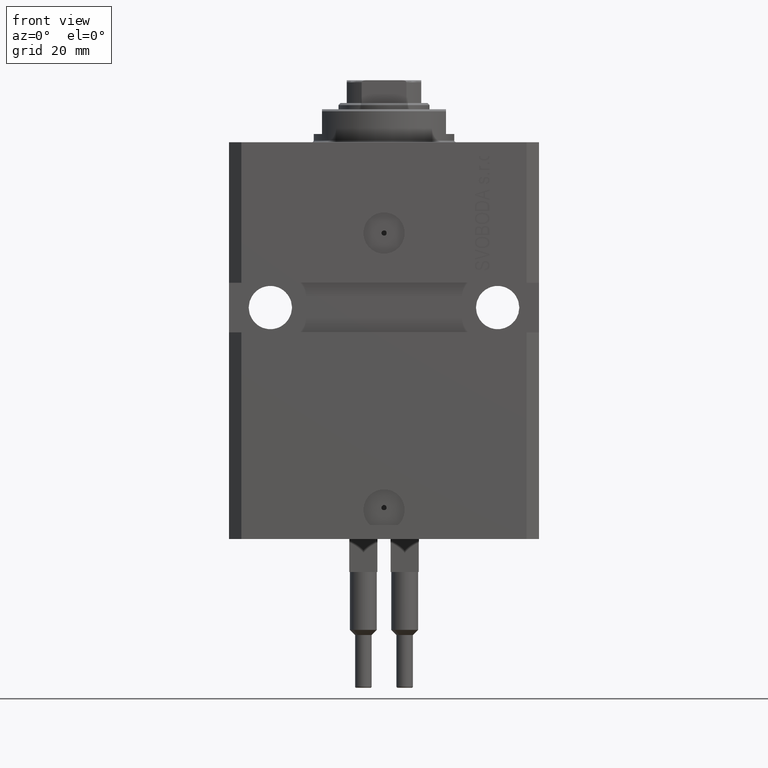
[diagram: clean part render]
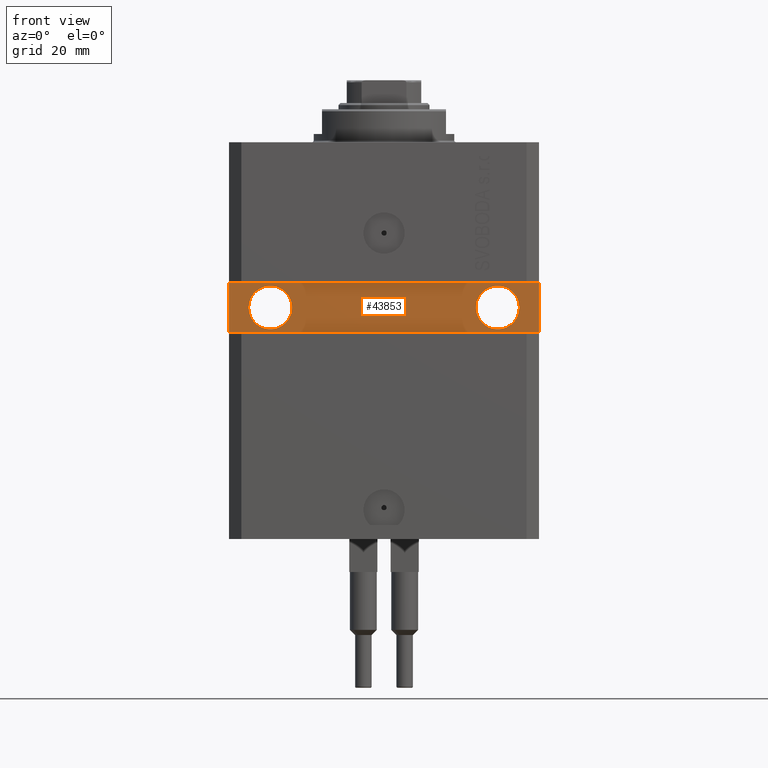
[diagram: same view with one face highlighted and labeled with its STEP entity id]
A machine part, front view. The second image highlights one B-rep face of the part: STEP entity #43853.
In plain terms, the highlighted planar face has unit normal (0, -1, 0).
Its self-contained STEP definition (entity closure, byte-faithful):
#1605 = DIRECTION ( 'NONE',  ( 1.000000000000000000, 9.251858538542972814E-17, 0.000000000000000000 ) ) ;
#1703 = DIRECTION ( 'NONE',  ( 1.101411730780568590E-16, -1.000000000000000000, 0.000000000000000000 ) ) ;
#1840 = CARTESIAN_POINT ( 'NONE',  ( 2.191435984341280931E-15, -24.49999999999999645, 0.000000000000000000 ) ) ;
#1997 = VERTEX_POINT ( 'NONE', #41491 ) ;
#2594 = DIRECTION ( 'NONE',  ( 1.000000000000000000, 0.000000000000000000, 0.000000000000000000 ) ) ;
#2644 = VERTEX_POINT ( 'NONE', #33735 ) ;
#3160 = CARTESIAN_POINT ( 'NONE',  ( -32.74999999999999289, -24.50000000000000000, -40.00000000000000711 ) ) ;
#3896 = VECTOR ( 'NONE', #32111, 1000.000000000000000 ) ;
#4980 = CARTESIAN_POINT ( 'NONE',  ( 27.50000000000000711, -24.49999999999999289, -40.00000000000000000 ) ) ;
#6173 = AXIS2_PLACEMENT_3D ( 'NONE', #1840, #23781, #1605 ) ;
#7161 = EDGE_CURVE ( 'NONE', #10833, #9611, #12570, .T. ) ;
#8186 = FACE_BOUND ( 'NONE', #26518, .T. ) ;
#8535 = CIRCLE ( 'NONE', #16997, 5.249999999999994671 ) ;
#9152 = PLANE ( 'NONE',  #6173 ) ;
#9310 = DIRECTION ( 'NONE',  ( -1.000000000000000000, -9.251858538542972814E-17, -1.850371707708594563E-16 ) ) ;
#9611 = VERTEX_POINT ( 'NONE', #35205 ) ;
#10833 = VERTEX_POINT ( 'NONE', #18787 ) ;
#11688 = CARTESIAN_POINT ( 'NONE',  ( -27.49999999999999289, -24.50000000000000000, -40.00000000000000711 ) ) ;
#11840 = ORIENTED_EDGE ( 'NONE', *, *, #34952, .F. ) ;
#12301 = VECTOR ( 'NONE', #16480, 1000.000000000000000 ) ;
#12570 = LINE ( 'NONE', #45952, #12301 ) ;
#13048 = FACE_BOUND ( 'NONE', #33206, .T. ) ;
#15853 = CARTESIAN_POINT ( 'NONE',  ( 37.49999999999999289, -24.49999999999999289, -46.00000000000000000 ) ) ;
#16053 = AXIS2_PLACEMENT_3D ( 'NONE', #11688, #1703, #30945 ) ;
#16480 = DIRECTION ( 'NONE',  ( 0.000000000000000000, 0.000000000000000000, -1.000000000000000000 ) ) ;
#16685 = ORIENTED_EDGE ( 'NONE', *, *, #38004, .T. ) ;
#16997 = AXIS2_PLACEMENT_3D ( 'NONE', #4980, #35459, #35211 ) ;
#17252 = CARTESIAN_POINT ( 'NONE',  ( 37.49999999999999289, -24.49999999999999289, -46.00000000000000000 ) ) ;
#17368 = CIRCLE ( 'NONE', #29054, 5.249999999999997335 ) ;
#18435 = EDGE_CURVE ( 'NONE', #2644, #33962, #19543, .T. ) ;
#18787 = CARTESIAN_POINT ( 'NONE',  ( -37.50000000000000000, -24.50000000000000000, -34.00000000000000000 ) ) ;
#19525 = DIRECTION ( 'NONE',  ( 1.171720209325604191E-16, -1.000000000000000000, 0.000000000000000000 ) ) ;
#19543 = CIRCLE ( 'NONE', #36683, 5.249999999999994671 ) ;
#20732 = CIRCLE ( 'NONE', #16053, 5.249999999999997335 ) ;
#20836 = ORIENTED_EDGE ( 'NONE', *, *, #7161, .T. ) ;
#21233 = VERTEX_POINT ( 'NONE', #17252 ) ;
#21352 = DIRECTION ( 'NONE',  ( 1.101411730780568590E-16, -1.000000000000000000, 0.000000000000000000 ) ) ;
#22118 = ORIENTED_EDGE ( 'NONE', *, *, #18435, .F. ) ;
#22697 = LINE ( 'NONE', #15853, #26439 ) ;
#22941 = EDGE_CURVE ( 'NONE', #28904, #45194, #17368, .T. ) ;
#23781 = DIRECTION ( 'NONE',  ( 9.251858538542972814E-17, -1.000000000000000000, 0.000000000000000000 ) ) ;
#23835 = CARTESIAN_POINT ( 'NONE',  ( -37.50000000000000000, -24.50000000000000000, -46.00000000000000000 ) ) ;
#23959 = VECTOR ( 'NONE', #9310, 1000.000000000000000 ) ;
#26439 = VECTOR ( 'NONE', #37567, 1000.000000000000000 ) ;
#26518 = EDGE_LOOP ( 'NONE', ( #38003, #22118 ) ) ;
#28789 = CARTESIAN_POINT ( 'NONE',  ( 32.75000000000000000, -24.49999999999999289, -40.00000000000000000 ) ) ;
#28904 = VERTEX_POINT ( 'NONE', #30443 ) ;
#29054 = AXIS2_PLACEMENT_3D ( 'NONE', #32322, #21352, #2594 ) ;
#30443 = CARTESIAN_POINT ( 'NONE',  ( -22.24999999999999645, -24.50000000000000000, -40.00000000000000711 ) ) ;
#30945 = DIRECTION ( 'NONE',  ( 1.000000000000000000, 0.000000000000000000, 0.000000000000000000 ) ) ;
#31345 = ORIENTED_EDGE ( 'NONE', *, *, #47589, .T. ) ;
#31365 = ORIENTED_EDGE ( 'NONE', *, *, #22941, .F. ) ;
#31569 = FACE_OUTER_BOUND ( 'NONE', #44341, .T. ) ;
#31709 = ORIENTED_EDGE ( 'NONE', *, *, #45398, .T. ) ;
#32111 = DIRECTION ( 'NONE',  ( 1.000000000000000000, 9.251858538542972814E-17, 0.000000000000000000 ) ) ;
#32322 = CARTESIAN_POINT ( 'NONE',  ( -27.49999999999999289, -24.50000000000000000, -40.00000000000000711 ) ) ;
#33206 = EDGE_LOOP ( 'NONE', ( #31365, #11840 ) ) ;
#33735 = CARTESIAN_POINT ( 'NONE',  ( 22.25000000000001421, -24.49999999999999289, -40.00000000000000000 ) ) ;
#33962 = VERTEX_POINT ( 'NONE', #28789 ) ;
#34393 = CARTESIAN_POINT ( 'NONE',  ( 27.50000000000000711, -24.49999999999999289, -40.00000000000000000 ) ) ;
#34952 = EDGE_CURVE ( 'NONE', #45194, #28904, #20732, .T. ) ;
#35205 = CARTESIAN_POINT ( 'NONE',  ( -37.50000000000000000, -24.50000000000000000, -46.00000000000000000 ) ) ;
#35211 = DIRECTION ( 'NONE',  ( 1.000000000000000000, 0.000000000000000000, 0.000000000000000000 ) ) ;
#35459 = DIRECTION ( 'NONE',  ( 1.171720209325604191E-16, -1.000000000000000000, 0.000000000000000000 ) ) ;
#36683 = AXIS2_PLACEMENT_3D ( 'NONE', #34393, #19525, #41676 ) ;
#37567 = DIRECTION ( 'NONE',  ( 0.000000000000000000, 0.000000000000000000, 1.000000000000000000 ) ) ;
#38003 = ORIENTED_EDGE ( 'NONE', *, *, #42068, .F. ) ;
#38004 = EDGE_CURVE ( 'NONE', #1997, #10833, #45860, .T. ) ;
#39283 = CARTESIAN_POINT ( 'NONE',  ( 37.49999999999999289, -24.49999999999999289, -33.99999999999998579 ) ) ;
#41491 = CARTESIAN_POINT ( 'NONE',  ( 37.49999999999999289, -24.49999999999999289, -33.99999999999998579 ) ) ;
#41676 = DIRECTION ( 'NONE',  ( 1.000000000000000000, 0.000000000000000000, 0.000000000000000000 ) ) ;
#42068 = EDGE_CURVE ( 'NONE', #33962, #2644, #8535, .T. ) ;
#42327 = LINE ( 'NONE', #23835, #3896 ) ;
#43853 = ADVANCED_FACE ( 'NONE', ( #8186, #13048, #31569 ), #9152, .T. ) ;
#44341 = EDGE_LOOP ( 'NONE', ( #31709, #31345, #16685, #20836 ) ) ;
#45194 = VERTEX_POINT ( 'NONE', #3160 ) ;
#45398 = EDGE_CURVE ( 'NONE', #9611, #21233, #42327, .T. ) ;
#45860 = LINE ( 'NONE', #39283, #23959 ) ;
#45952 = CARTESIAN_POINT ( 'NONE',  ( -37.50000000000000000, -24.50000000000000000, -34.00000000000000000 ) ) ;
#47589 = EDGE_CURVE ( 'NONE', #21233, #1997, #22697, .T. ) ;